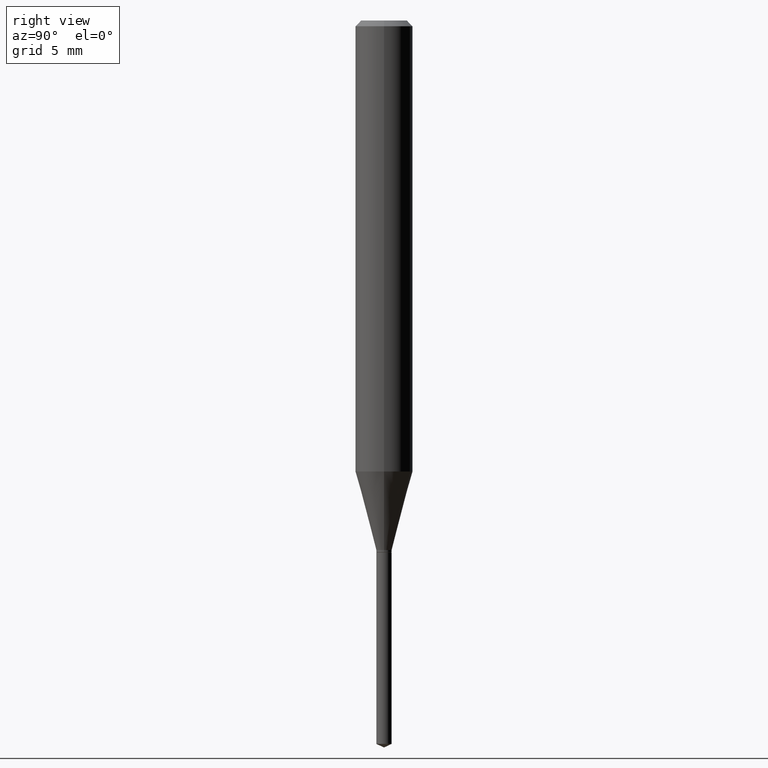
[diagram: clean part render]
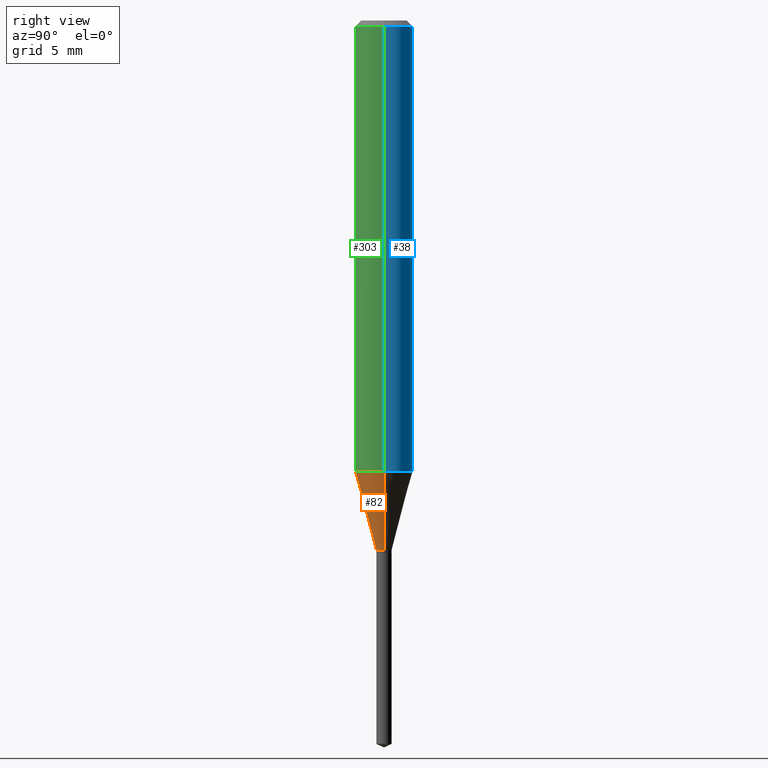
[diagram: same view with three faces highlighted in distinct colors, each labeled with its STEP entity id]
A machine part, right view with three faces highlighted in distinct colors.
Their STEP definitions:

[orange] entity #82 — the highlighted conical surface has half-angle 15 deg.
#2 = VECTOR ( 'NONE', #227, 39.37007874015747433 ) ;
#6 = CARTESIAN_POINT ( 'NONE',  ( 2.665071904980561815E-29, -3.805016363071259851E-15, -1.089799999999999880 ) ) ;
#28 = AXIS2_PLACEMENT_3D ( 'NONE', #6, #302, #162 ) ;
#33 = VERTEX_POINT ( 'NONE', #413 ) ;
#34 = LINE ( 'NONE', #471, #119 ) ;
#42 = AXIS2_PLACEMENT_3D ( 'NONE', #326, #131, #173 ) ;
#82 = ADVANCED_FACE ( 'NONE', ( #199 ), #212, .T. ) ;
#97 = DIRECTION ( 'NONE',  ( 1.000000000000000000, -6.982962677686255667E-15, 0.000000000000000000 ) ) ;
#119 = VECTOR ( 'NONE', #214, 39.37007874015747433 ) ;
#131 = DIRECTION ( 'NONE',  ( -2.445468806185136597E-29, 3.491481338843145583E-15, 1.000000000000000000 ) ) ;
#142 = EDGE_CURVE ( 'NONE', #33, #461, #34, .T. ) ;
#147 = ORIENTED_EDGE ( 'NONE', *, *, #166, .T. ) ;
#162 = DIRECTION ( 'NONE',  ( 1.000000000000000000, -6.982962677686255667E-15, 0.000000000000000000 ) ) ;
#166 = EDGE_CURVE ( 'NONE', #480, #33, #296, .T. ) ;
#173 = DIRECTION ( 'NONE',  ( 1.000000000000000000, -6.982962677686268288E-15, 0.000000000000000000 ) ) ;
#186 = ORIENTED_EDGE ( 'NONE', *, *, #470, .F. ) ;
#199 = FACE_OUTER_BOUND ( 'NONE', #375, .T. ) ;
#210 = DIRECTION ( 'NONE',  ( -2.445468806185136597E-29, 3.491481338843145583E-15, 1.000000000000000000 ) ) ;
#212 = CONICAL_SURFACE ( 'NONE', #28, 0.01575000000000000011, 0.2617993877991500740 ) ;
#214 = DIRECTION ( 'NONE',  ( 0.2588190451025213501, 1.565188264969621968E-15, 0.9659258262890682012 ) ) ;
#223 = ORIENTED_EDGE ( 'NONE', *, *, #142, .T. ) ;
#227 = DIRECTION ( 'NONE',  ( -0.2588190451025213501, 5.211531920934551042E-15, 0.9659258262890682012 ) ) ;
#235 = CIRCLE ( 'NONE', #42, 0.05905000000000010241 ) ;
#244 = EDGE_CURVE ( 'NONE', #480, #285, #277, .T. ) ;
#257 = AXIS2_PLACEMENT_3D ( 'NONE', #269, #210, #97 ) ;
#268 = CARTESIAN_POINT ( 'NONE',  ( -0.05905000000000011628, -2.821225174619474378E-15, -0.9282022000322674993 ) ) ;
#269 = CARTESIAN_POINT ( 'NONE',  ( 2.665071904980561815E-29, -3.805016363071259851E-15, -1.089799999999999880 ) ) ;
#277 = LINE ( 'NONE', #328, #2 ) ;
#278 = CARTESIAN_POINT ( 'NONE',  ( 0.05905000000000011628, -3.653144606203188791E-15, -0.9282022000322674993 ) ) ;
#285 = VERTEX_POINT ( 'NONE', #268 ) ;
#296 = CIRCLE ( 'NONE', #257, 0.01575000000000000011 ) ;
#302 = DIRECTION ( 'NONE',  ( -2.445468806185136597E-29, 3.491481338843145583E-15, 1.000000000000000000 ) ) ;
#326 = CARTESIAN_POINT ( 'NONE',  ( 2.269889526011326603E-29, -3.240800660085814660E-15, -0.9282022000322674993 ) ) ;
#328 = CARTESIAN_POINT ( 'NONE',  ( -0.01575000000000000011, -3.693105882189043775E-15, -1.089799999999999880 ) ) ;
#375 = EDGE_LOOP ( 'NONE', ( #388, #147, #223, #186 ) ) ;
#388 = ORIENTED_EDGE ( 'NONE', *, *, #244, .F. ) ;
#413 = CARTESIAN_POINT ( 'NONE',  ( 0.01575000000000000011, -3.914998025244818520E-15, -1.089799999999999880 ) ) ;
#425 = CARTESIAN_POINT ( 'NONE',  ( -0.01575000000000000011, -3.700437993000614090E-15, -1.089799999999999880 ) ) ;
#461 = VERTEX_POINT ( 'NONE', #278 ) ;
#470 = EDGE_CURVE ( 'NONE', #285, #461, #235, .T. ) ;
#471 = CARTESIAN_POINT ( 'NONE',  ( 0.01575000000000000011, -3.914998025244818520E-15, -1.089799999999999880 ) ) ;
#480 = VERTEX_POINT ( 'NONE', #425 ) ;

[blue] entity #38 — the highlighted cylindrical surface (edge-blend (fillet) strip) has radius 1.4999 mm, axis along (-0, 0, 1).
#38 = ADVANCED_FACE ( 'NONE', ( #237 ), #47, .T. ) ;
#46 = DIRECTION ( 'NONE',  ( -2.445468806185136597E-29, 3.491481338843145583E-15, 1.000000000000000000 ) ) ;
#47 = CYLINDRICAL_SURFACE ( 'NONE', #78, 0.05905000000000005383 ) ;
#51 = DIRECTION ( 'NONE',  ( 1.000000000000000000, -6.982962677686268288E-15, 0.000000000000000000 ) ) ;
#57 = EDGE_CURVE ( 'NONE', #461, #122, #423, .T. ) ;
#62 = ORIENTED_EDGE ( 'NONE', *, *, #63, .F. ) ;
#63 = EDGE_CURVE ( 'NONE', #122, #139, #372, .T. ) ;
#78 = AXIS2_PLACEMENT_3D ( 'NONE', #128, #87, #197 ) ;
#83 = DIRECTION ( 'NONE',  ( 1.000000000000000000, -6.982962677686266711E-15, 0.000000000000000000 ) ) ;
#87 = DIRECTION ( 'NONE',  ( -2.445468806185136597E-29, 3.491481338843145583E-15, 1.000000000000000000 ) ) ;
#121 = DIRECTION ( 'NONE',  ( -2.445468806185136597E-29, 3.491481338843145583E-15, 1.000000000000000000 ) ) ;
#122 = VERTEX_POINT ( 'NONE', #253 ) ;
#123 = LINE ( 'NONE', #308, #468 ) ;
#128 = CARTESIAN_POINT ( 'NONE',  ( 0.000000000000000000, 0.000000000000000000, 0.000000000000000000 ) ) ;
#139 = VERTEX_POINT ( 'NONE', #479 ) ;
#148 = ORIENTED_EDGE ( 'NONE', *, *, #312, .T. ) ;
#152 = ORIENTED_EDGE ( 'NONE', *, *, #188, .T. ) ;
#153 = AXIS2_PLACEMENT_3D ( 'NONE', #232, #46, #83 ) ;
#170 = VECTOR ( 'NONE', #404, 39.37007874015748143 ) ;
#188 = EDGE_CURVE ( 'NONE', #461, #285, #202, .T. ) ;
#197 = DIRECTION ( 'NONE',  ( 1.000000000000000000, -6.982962677686266711E-15, 4.876176775795935793E-29 ) ) ;
#202 = CIRCLE ( 'NONE', #289, 0.05905000000000010241 ) ;
#232 = CARTESIAN_POINT ( 'NONE',  ( 2.888098660104663766E-31, -4.123439461173779647E-17, -0.01181000000000007044 ) ) ;
#237 = FACE_OUTER_BOUND ( 'NONE', #473, .T. ) ;
#253 = CARTESIAN_POINT ( 'NONE',  ( 0.05904999999999999832, -4.535783407291118600E-16, -0.01181000000000007044 ) ) ;
#268 = CARTESIAN_POINT ( 'NONE',  ( -0.05905000000000011628, -2.821225174619474378E-15, -0.9282022000322674993 ) ) ;
#278 = CARTESIAN_POINT ( 'NONE',  ( 0.05905000000000011628, -3.653144606203188791E-15, -0.9282022000322674993 ) ) ;
#285 = VERTEX_POINT ( 'NONE', #268 ) ;
#289 = AXIS2_PLACEMENT_3D ( 'NONE', #305, #121, #51 ) ;
#305 = CARTESIAN_POINT ( 'NONE',  ( 2.269889526011326603E-29, -3.240800660085814660E-15, -0.9282022000322674993 ) ) ;
#308 = CARTESIAN_POINT ( 'NONE',  ( -0.05905000000000005383, 4.195754854663395423E-16, -2.904631170795524694E-30 ) ) ;
#312 = EDGE_CURVE ( 'NONE', #285, #139, #123, .T. ) ;
#341 = DIRECTION ( 'NONE',  ( -2.445468806185136877E-29, 3.491481338843145188E-15, 1.000000000000000000 ) ) ;
#353 = CARTESIAN_POINT ( 'NONE',  ( 0.05905000000000005383, -4.123439461173744271E-16, 2.879382386107502672E-30 ) ) ;
#372 = CIRCLE ( 'NONE', #153, 0.05904999999999999832 ) ;
#404 = DIRECTION ( 'NONE',  ( -2.445468806185136877E-29, 3.491481338843145188E-15, 1.000000000000000000 ) ) ;
#423 = LINE ( 'NONE', #353, #170 ) ;
#436 = ORIENTED_EDGE ( 'NONE', *, *, #57, .F. ) ;
#461 = VERTEX_POINT ( 'NONE', #278 ) ;
#468 = VECTOR ( 'NONE', #341, 39.37007874015748143 ) ;
#473 = EDGE_LOOP ( 'NONE', ( #152, #148, #62, #436 ) ) ;
#479 = CARTESIAN_POINT ( 'NONE',  ( -0.05904999999999999832, -1.221442041882436307E-15, -0.01181000000000007044 ) ) ;

[green] entity #303 — the highlighted cylindrical surface (edge-blend (fillet) strip) has radius 1.4999 mm, axis along (-0, 0, 1).
#7 = DIRECTION ( 'NONE',  ( 1.000000000000000000, -6.982962677686266711E-15, 4.876176775795935793E-29 ) ) ;
#14 = ORIENTED_EDGE ( 'NONE', *, *, #57, .T. ) ;
#16 = DIRECTION ( 'NONE',  ( -2.445468806185136597E-29, 3.491481338843145583E-15, 1.000000000000000000 ) ) ;
#42 = AXIS2_PLACEMENT_3D ( 'NONE', #326, #131, #173 ) ;
#57 = EDGE_CURVE ( 'NONE', #461, #122, #423, .T. ) ;
#93 = AXIS2_PLACEMENT_3D ( 'NONE', #300, #16, #380 ) ;
#122 = VERTEX_POINT ( 'NONE', #253 ) ;
#123 = LINE ( 'NONE', #308, #468 ) ;
#131 = DIRECTION ( 'NONE',  ( -2.445468806185136597E-29, 3.491481338843145583E-15, 1.000000000000000000 ) ) ;
#139 = VERTEX_POINT ( 'NONE', #479 ) ;
#141 = ORIENTED_EDGE ( 'NONE', *, *, #217, .F. ) ;
#160 = FACE_OUTER_BOUND ( 'NONE', #476, .T. ) ;
#165 = CYLINDRICAL_SURFACE ( 'NONE', #327, 0.05905000000000005383 ) ;
#170 = VECTOR ( 'NONE', #404, 39.37007874015748143 ) ;
#173 = DIRECTION ( 'NONE',  ( 1.000000000000000000, -6.982962677686268288E-15, 0.000000000000000000 ) ) ;
#177 = ORIENTED_EDGE ( 'NONE', *, *, #312, .F. ) ;
#180 = CIRCLE ( 'NONE', #93, 0.05904999999999999832 ) ;
#191 = DIRECTION ( 'NONE',  ( -2.445468806185136597E-29, 3.491481338843145583E-15, 1.000000000000000000 ) ) ;
#217 = EDGE_CURVE ( 'NONE', #139, #122, #180, .T. ) ;
#235 = CIRCLE ( 'NONE', #42, 0.05905000000000010241 ) ;
#253 = CARTESIAN_POINT ( 'NONE',  ( 0.05904999999999999832, -4.535783407291118600E-16, -0.01181000000000007044 ) ) ;
#268 = CARTESIAN_POINT ( 'NONE',  ( -0.05905000000000011628, -2.821225174619474378E-15, -0.9282022000322674993 ) ) ;
#278 = CARTESIAN_POINT ( 'NONE',  ( 0.05905000000000011628, -3.653144606203188791E-15, -0.9282022000322674993 ) ) ;
#285 = VERTEX_POINT ( 'NONE', #268 ) ;
#300 = CARTESIAN_POINT ( 'NONE',  ( 2.888098660104663766E-31, -4.123439461173779647E-17, -0.01181000000000007044 ) ) ;
#303 = ADVANCED_FACE ( 'NONE', ( #160 ), #165, .T. ) ;
#308 = CARTESIAN_POINT ( 'NONE',  ( -0.05905000000000005383, 4.195754854663395423E-16, -2.904631170795524694E-30 ) ) ;
#312 = EDGE_CURVE ( 'NONE', #285, #139, #123, .T. ) ;
#326 = CARTESIAN_POINT ( 'NONE',  ( 2.269889526011326603E-29, -3.240800660085814660E-15, -0.9282022000322674993 ) ) ;
#327 = AXIS2_PLACEMENT_3D ( 'NONE', #417, #191, #7 ) ;
#331 = ORIENTED_EDGE ( 'NONE', *, *, #470, .T. ) ;
#341 = DIRECTION ( 'NONE',  ( -2.445468806185136877E-29, 3.491481338843145188E-15, 1.000000000000000000 ) ) ;
#353 = CARTESIAN_POINT ( 'NONE',  ( 0.05905000000000005383, -4.123439461173744271E-16, 2.879382386107502672E-30 ) ) ;
#380 = DIRECTION ( 'NONE',  ( 1.000000000000000000, -6.982962677686266711E-15, 0.000000000000000000 ) ) ;
#404 = DIRECTION ( 'NONE',  ( -2.445468806185136877E-29, 3.491481338843145188E-15, 1.000000000000000000 ) ) ;
#417 = CARTESIAN_POINT ( 'NONE',  ( 0.000000000000000000, 0.000000000000000000, 0.000000000000000000 ) ) ;
#423 = LINE ( 'NONE', #353, #170 ) ;
#461 = VERTEX_POINT ( 'NONE', #278 ) ;
#468 = VECTOR ( 'NONE', #341, 39.37007874015748143 ) ;
#470 = EDGE_CURVE ( 'NONE', #285, #461, #235, .T. ) ;
#476 = EDGE_LOOP ( 'NONE', ( #177, #331, #14, #141 ) ) ;
#479 = CARTESIAN_POINT ( 'NONE',  ( -0.05904999999999999832, -1.221442041882436307E-15, -0.01181000000000007044 ) ) ;